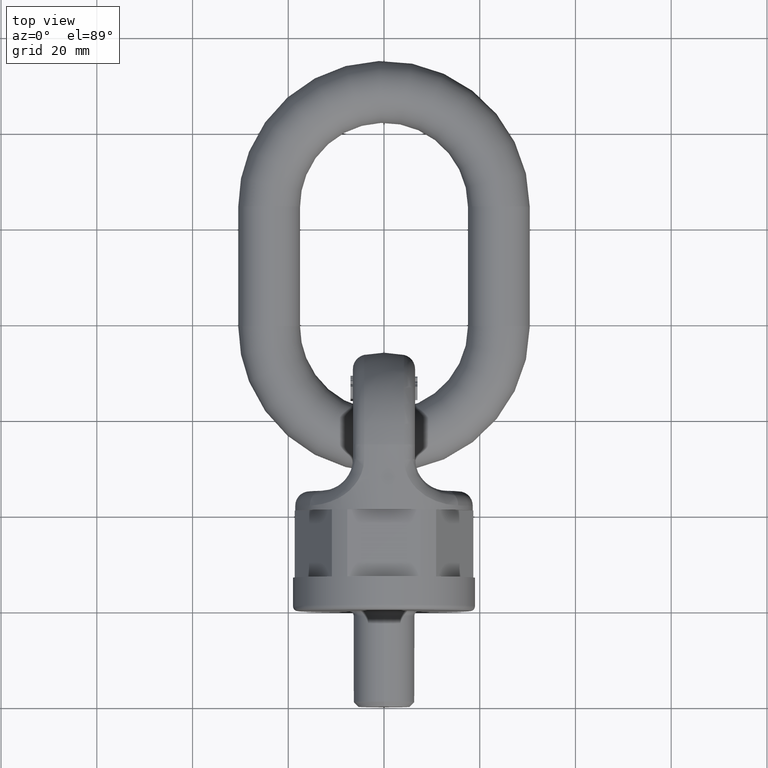
[diagram: clean part render]
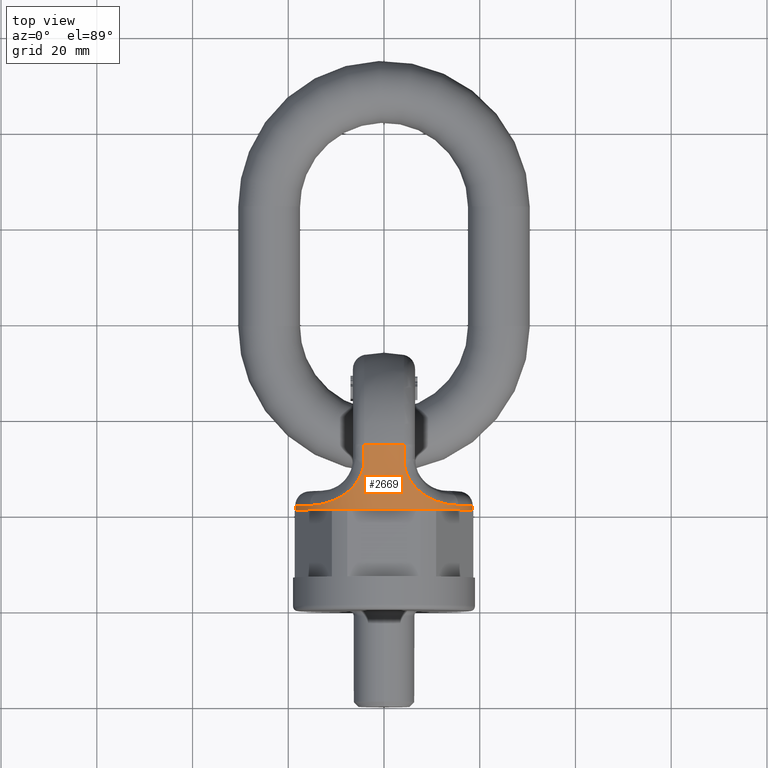
[diagram: same view with one face highlighted and labeled with its STEP entity id]
A machine part, top view. The second image highlights one B-rep face of the part: STEP entity #2669.
In plain terms, the highlighted conical surface has half-angle 1.464 deg.
Its self-contained STEP definition (entity closure, byte-faithful):
#357=B_SPLINE_CURVE_WITH_KNOTS('',3,(#7022,#7023,#7024,#7025),
 .UNSPECIFIED.,.F.,.F.,(4,4),(0.,1.),.UNSPECIFIED.);
#358=B_SPLINE_CURVE_WITH_KNOTS('',3,(#7030,#7031,#7032,#7033),
 .UNSPECIFIED.,.F.,.F.,(4,4),(0.,1.),.UNSPECIFIED.);
#359=B_SPLINE_CURVE_WITH_KNOTS('',3,(#7035,#7036,#7037,#7038,#7039,#7040,
#7041,#7042,#7043,#7044),.UNSPECIFIED.,.F.,.F.,(4,2,2,2,4),(0.,0.25,0.5,
0.75,1.),.UNSPECIFIED.);
#360=B_SPLINE_CURVE_WITH_KNOTS('',3,(#7048,#7049,#7050,#7051,#7052,#7053,
#7054,#7055,#7056,#7057),.UNSPECIFIED.,.F.,.F.,(4,2,2,2,4),(0.,0.25,0.5,
0.75,1.),.UNSPECIFIED.);
#361=B_SPLINE_CURVE_WITH_KNOTS('',3,(#7059,#7060,#7061,#7062),
 .UNSPECIFIED.,.F.,.F.,(4,4),(0.,1.),.UNSPECIFIED.);
#362=B_SPLINE_CURVE_WITH_KNOTS('',3,(#7066,#7067,#7068,#7069),
 .UNSPECIFIED.,.F.,.F.,(4,4),(0.,1.),.UNSPECIFIED.);
#363=B_SPLINE_CURVE_WITH_KNOTS('',3,(#7071,#7072,#7073,#7074,#7075,#7076,
#7077,#7078,#7079,#7080),.UNSPECIFIED.,.F.,.F.,(4,2,2,2,4),(0.,0.25,0.5,
0.75,1.),.UNSPECIFIED.);
#364=B_SPLINE_CURVE_WITH_KNOTS('',3,(#7084,#7085,#7086,#7087,#7088,#7089,
#7090,#7091,#7092,#7093),.UNSPECIFIED.,.F.,.F.,(4,2,2,2,4),(0.,0.25,0.5,
0.75,1.),.UNSPECIFIED.);
#1795=CONICAL_SURFACE('',#5657,18.6484136948249,1.46395699141893);
#2669=ADVANCED_FACE('',(#3016,#3017),#1795,.T.);
#3016=FACE_BOUND('',#3104,.T.);
#3017=FACE_BOUND('',#3105,.T.);
#3104=EDGE_LOOP('',(#3521));
#3105=EDGE_LOOP('',(#3522,#3523,#3524,#3525,#3526,#3527,#3528,#3529,#3530,
#3531,#3532,#3533));
#3521=ORIENTED_EDGE('',*,*,#5066,.F.);
#3522=ORIENTED_EDGE('',*,*,#5067,.T.);
#3523=ORIENTED_EDGE('',*,*,#5068,.T.);
#3524=ORIENTED_EDGE('',*,*,#5069,.T.);
#3525=ORIENTED_EDGE('',*,*,#5070,.T.);
#3526=ORIENTED_EDGE('',*,*,#5071,.T.);
#3527=ORIENTED_EDGE('',*,*,#5072,.T.);
#3528=ORIENTED_EDGE('',*,*,#5073,.T.);
#3529=ORIENTED_EDGE('',*,*,#5074,.T.);
#3530=ORIENTED_EDGE('',*,*,#5075,.T.);
#3531=ORIENTED_EDGE('',*,*,#5076,.T.);
#3532=ORIENTED_EDGE('',*,*,#5077,.T.);
#3533=ORIENTED_EDGE('',*,*,#5078,.T.);
#4653=VERTEX_POINT('',#7021);
#4654=VERTEX_POINT('',#7026);
#4655=VERTEX_POINT('',#7027);
#4656=VERTEX_POINT('',#7029);
#4657=VERTEX_POINT('',#7034);
#4658=VERTEX_POINT('',#7045);
#4659=VERTEX_POINT('',#7047);
#4660=VERTEX_POINT('',#7058);
#4661=VERTEX_POINT('',#7063);
#4662=VERTEX_POINT('',#7065);
#4663=VERTEX_POINT('',#7070);
#4664=VERTEX_POINT('',#7081);
#4665=VERTEX_POINT('',#7083);
#5066=EDGE_CURVE('',#4653,#4653,#5561,.T.);
#5067=EDGE_CURVE('',#4654,#4655,#357,.T.);
#5068=EDGE_CURVE('',#4655,#4656,#5562,.T.);
#5069=EDGE_CURVE('',#4656,#4657,#358,.T.);
#5070=EDGE_CURVE('',#4657,#4658,#359,.T.);
#5071=EDGE_CURVE('',#4658,#4659,#5563,.T.);
#5072=EDGE_CURVE('',#4659,#4660,#360,.T.);
#5073=EDGE_CURVE('',#4660,#4661,#361,.T.);
#5074=EDGE_CURVE('',#4661,#4662,#5564,.T.);
#5075=EDGE_CURVE('',#4662,#4663,#362,.T.);
#5076=EDGE_CURVE('',#4663,#4664,#363,.T.);
#5077=EDGE_CURVE('',#4664,#4665,#5565,.T.);
#5078=EDGE_CURVE('',#4665,#4654,#364,.T.);
#5561=CIRCLE('',#5652,18.6484136948249);
#5562=CIRCLE('',#5653,18.9937982914999);
#5563=CIRCLE('',#5654,18.6720113721645);
#5564=CIRCLE('',#5655,18.9937982914999);
#5565=CIRCLE('',#5656,18.6720113721645);
#5652=AXIS2_PLACEMENT_3D('',#7020,#5967,#5968);
#5653=AXIS2_PLACEMENT_3D('',#7028,#5969,#5970);
#5654=AXIS2_PLACEMENT_3D('',#7046,#5971,#5972);
#5655=AXIS2_PLACEMENT_3D('',#7064,#5973,#5974);
#5656=AXIS2_PLACEMENT_3D('',#7082,#5975,#5976);
#5657=AXIS2_PLACEMENT_3D('',#7094,#5977,#5978);
#5967=DIRECTION('',(0.,-1.,0.));
#5968=DIRECTION('',(0.,0.,-1.));
#5969=DIRECTION('',(0.,-1.,0.));
#5970=DIRECTION('',(0.,0.,-1.));
#5971=DIRECTION('',(8.32667268468868E-16,-1.,0.));
#5972=DIRECTION('',(1.,7.43240111159256E-16,0.));
#5973=DIRECTION('',(0.,-1.,0.));
#5974=DIRECTION('',(0.,0.,-1.));
#5975=DIRECTION('',(-8.32667268468868E-16,-1.,-1.95086507712026E-30));
#5976=DIRECTION('',(-1.,7.43240111159256E-16,-2.34291072916505E-15));
#5977=DIRECTION('',(0.,1.,0.));
#5978=DIRECTION('',(0.,-2.04062746293326E-15,1.));
#7020=CARTESIAN_POINT('',(0.,21.,0.));
#7021=CARTESIAN_POINT('',(0.,21.,-18.6484136948249));
#7022=CARTESIAN_POINT('',(-4.15950741497036,31.4233557313077,-18.4517766458426));
#7023=CARTESIAN_POINT('',(-4.15841622054428,32.4537657762764,-18.4790170367736));
#7024=CARTESIAN_POINT('',(-4.15733044217178,33.4841759661428,-18.5062521646969));
#7025=CARTESIAN_POINT('',(-4.15624999999995,34.514586298282,-18.5334821195501));
#7026=CARTESIAN_POINT('',(-4.15950741497036,31.4233557313077,-18.4517766458426));
#7027=CARTESIAN_POINT('',(-4.15624999999995,34.514586298282,-18.5334821195501));
#7028=CARTESIAN_POINT('',(0.,34.514586298282,0.));
#7029=CARTESIAN_POINT('',(4.15625,34.514586298282,-18.5334821195501));
#7030=CARTESIAN_POINT('',(4.15625,34.514586298282,-18.5334821195501));
#7031=CARTESIAN_POINT('',(4.15733044217183,33.4841759661428,-18.5062521646969));
#7032=CARTESIAN_POINT('',(4.15841622054432,32.4537657762764,-18.4790170367736));
#7033=CARTESIAN_POINT('',(4.15950741497041,31.4233557313077,-18.4517766458426));
#7034=CARTESIAN_POINT('',(4.15950741497041,31.4233557313077,-18.4517766458426));
#7035=CARTESIAN_POINT('',(4.15950741497041,31.4233557313077,-18.4517766458426));
#7036=CARTESIAN_POINT('',(4.16120898645442,29.816569344349,-18.4092989064835));
#7037=CARTESIAN_POINT('',(4.66522994803894,28.2515926450828,-18.2682301448783));
#7038=CARTESIAN_POINT('',(6.33779244076709,25.6305014725102,-17.6863306953856));
#7039=CARTESIAN_POINT('',(7.49877836215917,24.5697693410119,-17.2298785735647));
#7040=CARTESIAN_POINT('',(9.93697532082874,23.0451607554856,-15.9027703847803));
#7041=CARTESIAN_POINT('',(11.2117463757235,22.5674577020305,-15.0342662238502));
#7042=CARTESIAN_POINT('',(13.5571584499843,22.0067867917594,-12.9383350146668));
#7043=CARTESIAN_POINT('',(14.5963560638232,21.9233557313077,-11.7531228799004));
#7044=CARTESIAN_POINT('',(15.4875450511605,21.9233557313077,-10.4297630352043));
#7045=CARTESIAN_POINT('',(15.4875450511605,21.9233557313077,-10.4297630352043));
#7046=CARTESIAN_POINT('',(0.,21.9233557313078,0.));
#7047=CARTESIAN_POINT('',(15.4875450511606,21.9233557313077,10.4297630352043));
#7048=CARTESIAN_POINT('',(15.4875450511606,21.9233557313077,10.4297630352043));
#7049=CARTESIAN_POINT('',(14.5962132237876,21.9233557313077,11.7533349884094));
#7050=CARTESIAN_POINT('',(13.5372725100627,22.0103603320934,12.9578858057789));
#7051=CARTESIAN_POINT('',(11.2071744067671,22.5697432777094,15.0365529692814));
#7052=CARTESIAN_POINT('',(9.93000354387101,23.047073763236,15.9078233343834));
#7053=CARTESIAN_POINT('',(7.47786478382285,24.5853210556568,17.2399892013453));
#7054=CARTESIAN_POINT('',(6.32296779776607,25.6483066229491,17.6918205052819));
#7055=CARTESIAN_POINT('',(4.66149671593484,28.2629306005112,18.2691930515016));
#7056=CARTESIAN_POINT('',(4.16120719675788,29.8182593468178,18.4093435841613));
#7057=CARTESIAN_POINT('',(4.15950741497039,31.4233557313077,18.4517766458427));
#7058=CARTESIAN_POINT('',(4.15950741497041,31.4233557313077,18.4517766458426));
#7059=CARTESIAN_POINT('',(4.15950741497041,31.4233557313077,18.4517766458426));
#7060=CARTESIAN_POINT('',(4.15841622054432,32.4537657762764,18.4790170367736));
#7061=CARTESIAN_POINT('',(4.15733044217183,33.4841759661428,18.5062521646969));
#7062=CARTESIAN_POINT('',(4.15625,34.514586298282,18.5334821195501));
#7063=CARTESIAN_POINT('',(4.15625,34.514586298282,18.5334821195501));
#7064=CARTESIAN_POINT('',(0.,34.514586298282,0.));
#7065=CARTESIAN_POINT('',(-4.15625000000004,34.514586298282,18.5334821195501));
#7066=CARTESIAN_POINT('',(-4.15625000000004,34.514586298282,18.5334821195501));
#7067=CARTESIAN_POINT('',(-4.15733044217187,33.4841759661428,18.5062521646969));
#7068=CARTESIAN_POINT('',(-4.15841622054437,32.4537657762764,18.4790170367735));
#7069=CARTESIAN_POINT('',(-4.15950741497045,31.4233557313077,18.4517766458426));
#7070=CARTESIAN_POINT('',(-4.15950741497045,31.4233557313077,18.4517766458426));
#7071=CARTESIAN_POINT('',(-4.15950741497045,31.4233557313077,18.4517766458426));
#7072=CARTESIAN_POINT('',(-4.16120898645446,29.816569344349,18.4092989064835));
#7073=CARTESIAN_POINT('',(-4.66522994803899,28.2515926450828,18.2682301448783));
#7074=CARTESIAN_POINT('',(-6.33779244076713,25.6305014725102,17.6863306953856));
#7075=CARTESIAN_POINT('',(-7.49877836215921,24.5697693410119,17.2298785735647));
#7076=CARTESIAN_POINT('',(-9.93697532082878,23.0451607554856,15.9027703847803));
#7077=CARTESIAN_POINT('',(-11.2117463757236,22.5674577020305,15.0342662238501));
#7078=CARTESIAN_POINT('',(-13.5571584499843,22.0067867917593,12.9383350146668));
#7079=CARTESIAN_POINT('',(-14.5963560638232,21.9233557313077,11.7531228799004));
#7080=CARTESIAN_POINT('',(-15.4875450511606,21.9233557313077,10.4297630352043));
#7081=CARTESIAN_POINT('',(-15.4875450511606,21.9233557313077,10.4297630352043));
#7082=CARTESIAN_POINT('',(0.,21.9233557313078,0.));
#7083=CARTESIAN_POINT('',(-15.4875450511605,21.9233557313077,-10.4297630352043));
#7084=CARTESIAN_POINT('',(-15.4875450511605,21.9233557313077,-10.4297630352043));
#7085=CARTESIAN_POINT('',(-14.5962132237875,21.9233557313077,-11.7533349884095));
#7086=CARTESIAN_POINT('',(-13.5372725100627,22.0103603320934,-12.9578858057789));
#7087=CARTESIAN_POINT('',(-11.2071744067671,22.5697432777094,-15.0365529692814));
#7088=CARTESIAN_POINT('',(-9.93000354387097,23.047073763236,-15.9078233343834));
#7089=CARTESIAN_POINT('',(-7.47786478382281,24.5853210556568,-17.2399892013454));
#7090=CARTESIAN_POINT('',(-6.32296779776603,25.6483066229491,-17.6918205052819));
#7091=CARTESIAN_POINT('',(-4.66149671593479,28.2629306005112,-18.2691930515016));
#7092=CARTESIAN_POINT('',(-4.16120719675783,29.8182593468178,-18.4093435841613));
#7093=CARTESIAN_POINT('',(-4.15950741497034,31.4233557313077,-18.4517766458427));
#7094=CARTESIAN_POINT('',(0.,21.,0.));